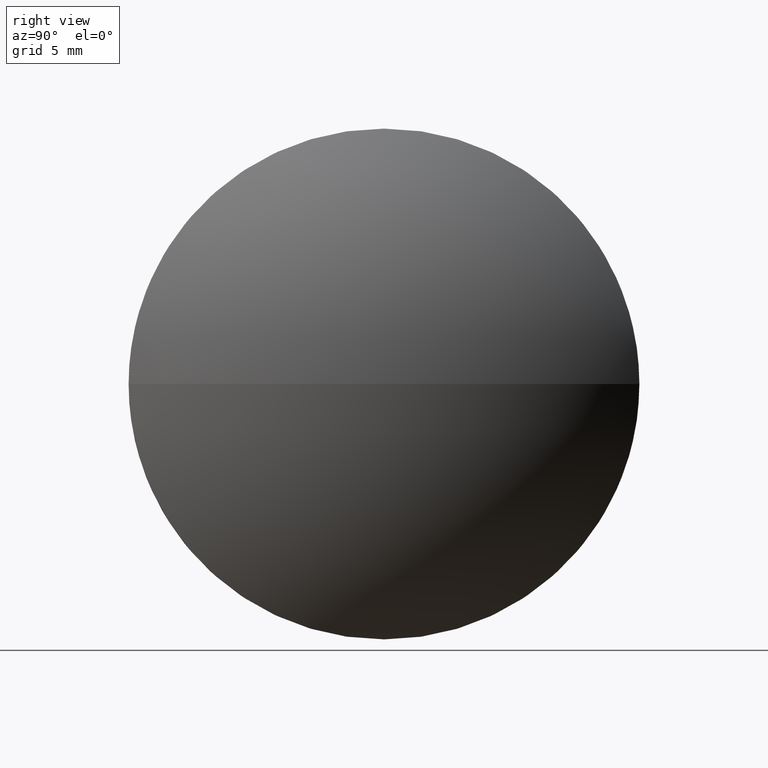
[diagram: clean part render]
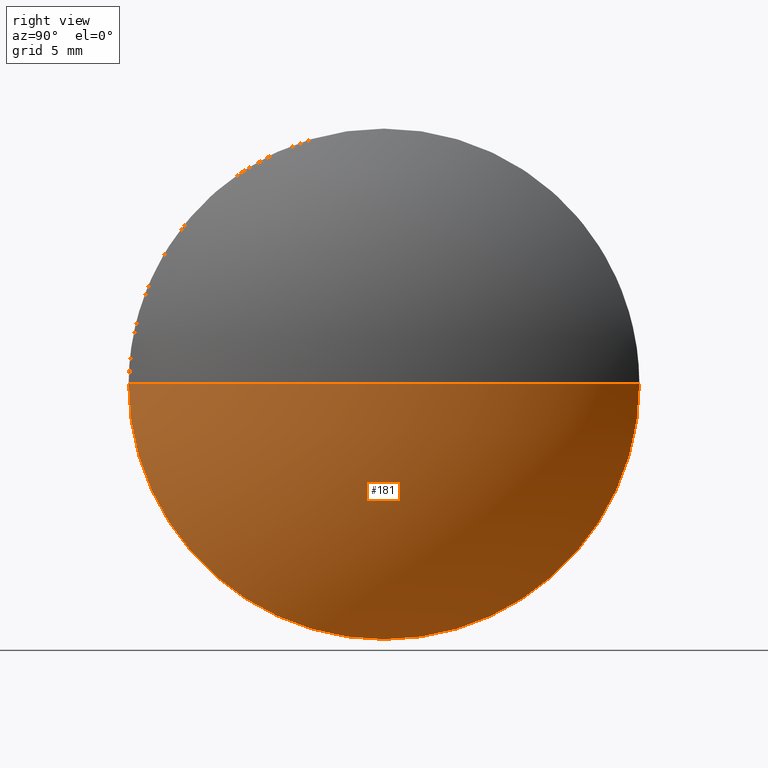
[diagram: same view with one face highlighted and labeled with its STEP entity id]
A machine part, right view. The second image highlights one B-rep face of the part: STEP entity #181.
In plain terms, the highlighted spherical surface has radius 15.4912 mm.
Its self-contained STEP definition (entity closure, byte-faithful):
#1 = EDGE_CURVE ( 'NONE', #55, #59, #77, .T. ) ;
#5 = ORIENTED_EDGE ( 'NONE', *, *, #111, .F. ) ;
#8 = CARTESIAN_POINT ( 'NONE',  ( 442.3599078379599000, 92.59863873987114900, 1.224646799147351700E-015 ) ) ;
#12 = DIRECTION ( 'NONE',  ( 0.0000000000000000000, -1.224646799147353200E-016, 1.000000000000000000 ) ) ;
#14 = AXIS2_PLACEMENT_3D ( 'NONE', #76, #141, #143 ) ;
#19 = FACE_OUTER_BOUND ( 'NONE', #100, .T. ) ;
#22 = CARTESIAN_POINT ( 'NONE',  ( 430.5287056521675600, 82.59863873987116300, 0.0000000000000000000 ) ) ;
#24 = VERTEX_POINT ( 'NONE', #90 ) ;
#29 = DIRECTION ( 'NONE',  ( 0.0000000000000000000, -1.000000000000000000, -1.224646799147352700E-016 ) ) ;
#38 = EDGE_CURVE ( 'NONE', #87, #24, #163, .T. ) ;
#39 = DIRECTION ( 'NONE',  ( 0.0000000000000000000, 0.0000000000000000000, -1.000000000000000000 ) ) ;
#41 = CARTESIAN_POINT ( 'NONE',  ( 446.0199078379599200, 82.59863873987116300, 0.0000000000000000000 ) ) ;
#43 = CARTESIAN_POINT ( 'NONE',  ( 430.5287056521675600, 82.59863873987116300, 0.0000000000000000000 ) ) ;
#44 = CARTESIAN_POINT ( 'NONE',  ( 442.3599078379599000, 82.59863873987114900, 0.0000000000000000000 ) ) ;
#45 = SPHERICAL_SURFACE ( 'NONE', #72, 15.49120218579235700 ) ;
#48 = CIRCLE ( 'NONE', #142, 9.999999999999994700 ) ;
#53 = DIRECTION ( 'NONE',  ( 0.0000000000000000000, 0.0000000000000000000, 1.000000000000000000 ) ) ;
#55 = VERTEX_POINT ( 'NONE', #41 ) ;
#59 = VERTEX_POINT ( 'NONE', #182 ) ;
#61 = DIRECTION ( 'NONE',  ( -1.000000000000000000, -0.0000000000000000000, -0.0000000000000000000 ) ) ;
#70 = DIRECTION ( 'NONE',  ( 0.0000000000000000000, 0.0000000000000000000, 1.000000000000000000 ) ) ;
#72 = AXIS2_PLACEMENT_3D ( 'NONE', #129, #53, #84 ) ;
#76 = CARTESIAN_POINT ( 'NONE',  ( 442.3599078379599000, 82.59863873987114900, 0.0000000000000000000 ) ) ;
#77 = CIRCLE ( 'NONE', #81, 15.49120218579236400 ) ;
#81 = AXIS2_PLACEMENT_3D ( 'NONE', #22, #39, #165 ) ;
#84 = DIRECTION ( 'NONE',  ( 0.0000000000000000000, -1.000000000000000000, 0.0000000000000000000 ) ) ;
#87 = VERTEX_POINT ( 'NONE', #8 ) ;
#90 = CARTESIAN_POINT ( 'NONE',  ( 442.3599078379599000, 82.59863873987114900, -9.999999999999994700 ) ) ;
#94 = EDGE_CURVE ( 'NONE', #24, #59, #48, .T. ) ;
#100 = EDGE_LOOP ( 'NONE', ( #5, #135, #139, #169 ) ) ;
#111 = EDGE_CURVE ( 'NONE', #55, #87, #125, .T. ) ;
#125 = CIRCLE ( 'NONE', #162, 15.49120218579236400 ) ;
#129 = CARTESIAN_POINT ( 'NONE',  ( 430.5287056521675600, 82.59863873987116300, 0.0000000000000000000 ) ) ;
#135 = ORIENTED_EDGE ( 'NONE', *, *, #1, .T. ) ;
#139 = ORIENTED_EDGE ( 'NONE', *, *, #94, .F. ) ;
#141 = DIRECTION ( 'NONE',  ( -1.000000000000000000, -0.0000000000000000000, -0.0000000000000000000 ) ) ;
#142 = AXIS2_PLACEMENT_3D ( 'NONE', #44, #61, #70 ) ;
#143 = DIRECTION ( 'NONE',  ( 0.0000000000000000000, 0.0000000000000000000, 1.000000000000000000 ) ) ;
#162 = AXIS2_PLACEMENT_3D ( 'NONE', #43, #12, #29 ) ;
#163 = CIRCLE ( 'NONE', #14, 9.999999999999994700 ) ;
#165 = DIRECTION ( 'NONE',  ( -1.000000000000000000, 0.0000000000000000000, 0.0000000000000000000 ) ) ;
#169 = ORIENTED_EDGE ( 'NONE', *, *, #38, .F. ) ;
#181 = ADVANCED_FACE ( 'NONE', ( #19 ), #45, .T. ) ;
#182 = CARTESIAN_POINT ( 'NONE',  ( 442.3599078379599000, 72.59863873987116300, 0.0000000000000000000 ) ) ;